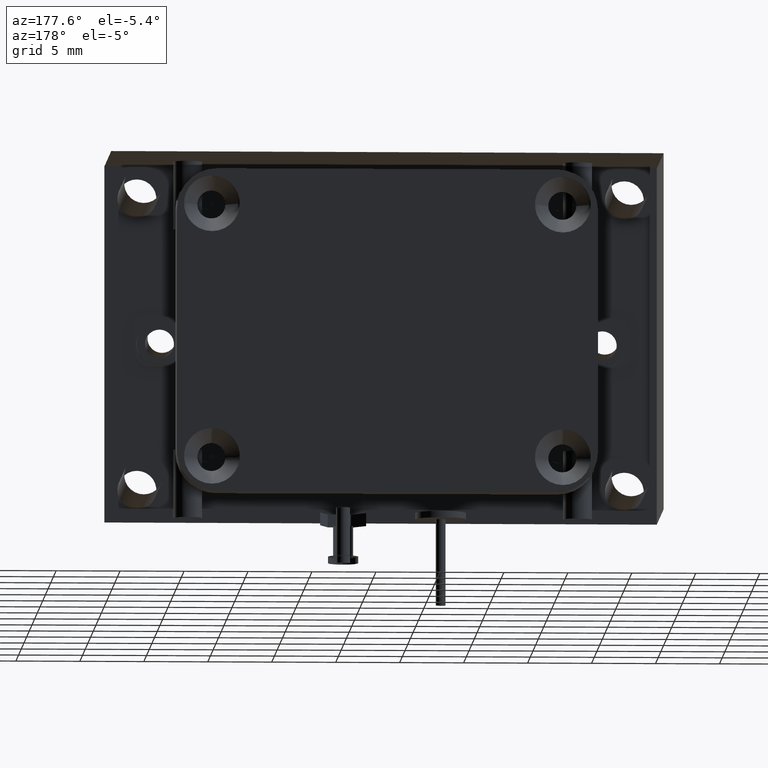
[diagram: clean part render]
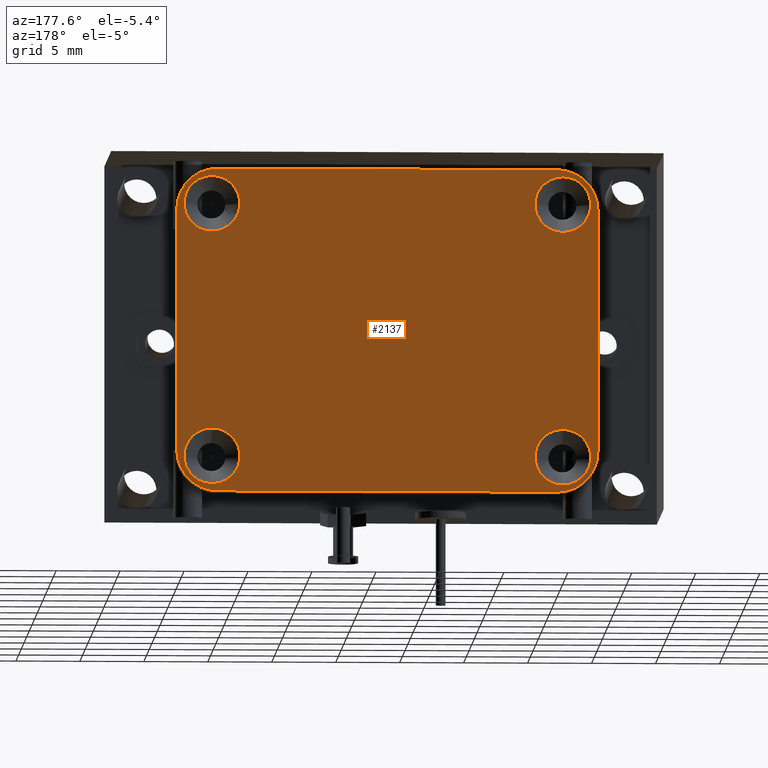
[diagram: same view with one face highlighted and labeled with its STEP entity id]
A machine part, auxiliary view. The second image highlights one B-rep face of the part: STEP entity #2137.
In plain terms, the highlighted planar face has unit normal (0, 1, 0).
Its self-contained STEP definition (entity closure, byte-faithful):
#124 = CARTESIAN_POINT ( 'NONE',  ( 0.5586823744848009600, 2.058571440405353200, 0.8595758433327451700 ) ) ;
#165 = DIRECTION ( 'NONE',  ( 0.0000000000000000000, -1.000000000000000000, -0.0000000000000000000 ) ) ;
#316 = DIRECTION ( 'NONE',  ( -1.000000000000000000, -0.0000000000000000000, 0.0000000000000000000 ) ) ;
#346 = EDGE_LOOP ( 'NONE', ( #910, #6352 ) ) ;
#369 = FACE_BOUND ( 'NONE', #3242, .T. ) ;
#642 = CARTESIAN_POINT ( 'NONE',  ( 0.4506823744848007500, 2.058571440404362000, 0.01057584333392263900 ) ) ;
#647 = ORIENTED_EDGE ( 'NONE', *, *, #4087, .T. ) ;
#778 = CARTESIAN_POINT ( 'NONE',  ( 0.4506823744848007500, 2.058571440404362000, 0.09657584333274524300 ) ) ;
#803 = CARTESIAN_POINT ( 'NONE',  ( -0.6123176255151990800, 2.058571440405353200, 0.1135758433327454400 ) ) ;
#831 = AXIS2_PLACEMENT_3D ( 'NONE', #6128, #5523, #7955 ) ;
#843 = VERTEX_POINT ( 'NONE', #2272 ) ;
#910 = ORIENTED_EDGE ( 'NONE', *, *, #5437, .T. ) ;
#945 = VECTOR ( 'NONE', #1468, 39.37007874015748100 ) ;
#983 = LINE ( 'NONE', #2243, #6797 ) ;
#1078 = AXIS2_PLACEMENT_3D ( 'NONE', #1903, #1849, #6861 ) ;
#1133 = LINE ( 'NONE', #4567, #945 ) ;
#1245 = FACE_BOUND ( 'NONE', #3756, .T. ) ;
#1259 = DIRECTION ( 'NONE',  ( 0.0000000000000000000, -1.000000000000000000, -0.0000000000000000000 ) ) ;
#1345 = CARTESIAN_POINT ( 'NONE',  ( -0.7373176255151990800, 2.058571440405353200, 0.8595758433327453900 ) ) ;
#1369 = VERTEX_POINT ( 'NONE', #5476 ) ;
#1409 = DIRECTION ( 'NONE',  ( 0.0000000000000000000, 0.0000000000000000000, 1.000000000000000000 ) ) ;
#1442 = VERTEX_POINT ( 'NONE', #7837 ) ;
#1446 = VECTOR ( 'NONE', #3467, 39.37007874015748100 ) ;
#1468 = DIRECTION ( 'NONE',  ( 0.0000000000000000000, -0.0000000000000000000, 1.000000000000000000 ) ) ;
#1487 = VERTEX_POINT ( 'NONE', #5566 ) ;
#1518 = CARTESIAN_POINT ( 'NONE',  ( 0.4506823744848007500, 2.058571440404362000, 0.8765758433327453000 ) ) ;
#1544 = CIRCLE ( 'NONE', #7849, 0.1250000000000000000 ) ;
#1554 = AXIS2_PLACEMENT_3D ( 'NONE', #6386, #2049, #6994 ) ;
#1570 = EDGE_CURVE ( 'NONE', #1442, #7601, #4601, .T. ) ;
#1597 = DIRECTION ( 'NONE',  ( 0.0000000000000000000, -0.0000000000000000000, 1.000000000000000000 ) ) ;
#1604 = ORIENTED_EDGE ( 'NONE', *, *, #2001, .T. ) ;
#1636 = FACE_OUTER_BOUND ( 'NONE', #2367, .T. ) ;
#1637 = EDGE_CURVE ( 'NONE', #4981, #1369, #7301, .T. ) ;
#1849 = DIRECTION ( 'NONE',  ( -0.0000000000000000000, 1.000000000000000000, -0.0000000000000000000 ) ) ;
#1854 = EDGE_CURVE ( 'NONE', #6517, #7558, #1544, .T. ) ;
#1874 = ORIENTED_EDGE ( 'NONE', *, *, #4703, .T. ) ;
#1903 = CARTESIAN_POINT ( 'NONE',  ( -0.6123176255151990800, 2.058571440405353200, 0.8595758433327453900 ) ) ;
#1917 = VERTEX_POINT ( 'NONE', #4752 ) ;
#2001 = EDGE_CURVE ( 'NONE', #3926, #4041, #6283, .T. ) ;
#2015 = DIRECTION ( 'NONE',  ( 0.0000000000000000000, -1.000000000000000000, -0.0000000000000000000 ) ) ;
#2049 = DIRECTION ( 'NONE',  ( 0.0000000000000000000, -1.000000000000000000, -0.0000000000000000000 ) ) ;
#2061 = AXIS2_PLACEMENT_3D ( 'NONE', #803, #5747, #5149 ) ;
#2082 = AXIS2_PLACEMENT_3D ( 'NONE', #6862, #2015, #1409 ) ;
#2137 = ADVANCED_FACE ( 'NONE', ( #1636, #1245, #2705, #7703, #369 ), #7708, .T. ) ;
#2154 = CARTESIAN_POINT ( 'NONE',  ( -0.6123176255151990800, 2.058571440405353200, 0.9845758433327452800 ) ) ;
#2228 = EDGE_LOOP ( 'NONE', ( #647, #7231 ) ) ;
#2243 = CARTESIAN_POINT ( 'NONE',  ( -0.08931762551519932500, 2.058571440405353200, -0.01142415666725473400 ) ) ;
#2272 = CARTESIAN_POINT ( 'NONE',  ( -0.6123176255151990800, 2.058571440405353200, -0.01142415666725464900 ) ) ;
#2286 = ORIENTED_EDGE ( 'NONE', *, *, #6720, .T. ) ;
#2304 = VERTEX_POINT ( 'NONE', #642 ) ;
#2350 = DIRECTION ( 'NONE',  ( 0.0000000000000000000, -1.000000000000000000, -0.0000000000000000000 ) ) ;
#2367 = EDGE_LOOP ( 'NONE', ( #4901, #7953, #5450, #6235, #3343, #2286, #5415, #6734 ) ) ;
#2394 = CARTESIAN_POINT ( 'NONE',  ( 0.5586823744848009600, 2.058571440405353200, 0.4865758433327452300 ) ) ;
#2630 = CARTESIAN_POINT ( 'NONE',  ( -0.6293176255151993200, 2.058571440406599800, 0.09657584333274524300 ) ) ;
#2705 = FACE_BOUND ( 'NONE', #346, .T. ) ;
#2782 = CARTESIAN_POINT ( 'NONE',  ( 0.5586823744848009600, 2.058571440405353200, 0.1135758433327453000 ) ) ;
#2820 = CARTESIAN_POINT ( 'NONE',  ( -0.08931762551519932500, 2.058571440405353200, 0.9845758433327452800 ) ) ;
#3002 = LINE ( 'NONE', #2394, #7700 ) ;
#3005 = DIRECTION ( 'NONE',  ( 0.0000000000000000000, 0.0000000000000000000, 1.000000000000000000 ) ) ;
#3122 = CIRCLE ( 'NONE', #3780, 0.08600000000083565800 ) ;
#3127 = ORIENTED_EDGE ( 'NONE', *, *, #6148, .T. ) ;
#3242 = EDGE_LOOP ( 'NONE', ( #1604, #1874 ) ) ;
#3300 = DIRECTION ( 'NONE',  ( 0.0000000000000000000, -1.000000000000000000, -0.0000000000000000000 ) ) ;
#3343 = ORIENTED_EDGE ( 'NONE', *, *, #5654, .T. ) ;
#3433 = AXIS2_PLACEMENT_3D ( 'NONE', #2630, #165, #7630 ) ;
#3447 = AXIS2_PLACEMENT_3D ( 'NONE', #1518, #6588, #5934 ) ;
#3467 = DIRECTION ( 'NONE',  ( 1.000000000000000000, 0.0000000000000000000, -0.0000000000000000000 ) ) ;
#3567 = CIRCLE ( 'NONE', #1554, 0.08600000000083565800 ) ;
#3756 = EDGE_LOOP ( 'NONE', ( #3127, #4678 ) ) ;
#3780 = AXIS2_PLACEMENT_3D ( 'NONE', #5530, #4169, #7291 ) ;
#3784 = CIRCLE ( 'NONE', #2061, 0.1250000000000000000 ) ;
#3787 = DIRECTION ( 'NONE',  ( 0.0000000000000000000, 0.0000000000000000000, 1.000000000000000000 ) ) ;
#3926 = VERTEX_POINT ( 'NONE', #6332 ) ;
#3997 = VERTEX_POINT ( 'NONE', #7753 ) ;
#4041 = VERTEX_POINT ( 'NONE', #5259 ) ;
#4087 = EDGE_CURVE ( 'NONE', #1369, #4981, #4259, .T. ) ;
#4123 = AXIS2_PLACEMENT_3D ( 'NONE', #7261, #2350, #3005 ) ;
#4169 = DIRECTION ( 'NONE',  ( 0.0000000000000000000, -1.000000000000000000, -0.0000000000000000000 ) ) ;
#4259 = CIRCLE ( 'NONE', #3447, 0.08600000000278100500 ) ;
#4297 = CARTESIAN_POINT ( 'NONE',  ( 0.4506823744848007500, 2.058571440404362000, 0.1825758433315678700 ) ) ;
#4398 = VERTEX_POINT ( 'NONE', #1345 ) ;
#4419 = CARTESIAN_POINT ( 'NONE',  ( 0.4506823744848007500, 2.058571440404362000, 0.7905758433299642200 ) ) ;
#4505 = VERTEX_POINT ( 'NONE', #2154 ) ;
#4558 = DIRECTION ( 'NONE',  ( 0.0000000000000000000, 0.0000000000000000000, 1.000000000000000000 ) ) ;
#4567 = CARTESIAN_POINT ( 'NONE',  ( -0.7373176255151991900, 2.058571440405353200, 0.4865758433327452300 ) ) ;
#4601 = CIRCLE ( 'NONE', #831, 0.1250000000000000300 ) ;
#4678 = ORIENTED_EDGE ( 'NONE', *, *, #7624, .T. ) ;
#4703 = EDGE_CURVE ( 'NONE', #4041, #3926, #5512, .T. ) ;
#4752 = CARTESIAN_POINT ( 'NONE',  ( -0.6293176255151993200, 2.058571440406599800, 0.7905758433319095600 ) ) ;
#4901 = ORIENTED_EDGE ( 'NONE', *, *, #7275, .T. ) ;
#4981 = VERTEX_POINT ( 'NONE', #4419 ) ;
#5079 = CARTESIAN_POINT ( 'NONE',  ( 0.4336823744848009600, 2.058571440405353200, -0.01142415666725471600 ) ) ;
#5149 = DIRECTION ( 'NONE',  ( 0.0000000000000000000, 0.0000000000000000000, -1.000000000000000000 ) ) ;
#5241 = LINE ( 'NONE', #2820, #1446 ) ;
#5259 = CARTESIAN_POINT ( 'NONE',  ( -0.6293176255151993200, 2.058571440406599800, 0.01057584333197723900 ) ) ;
#5326 = DIRECTION ( 'NONE',  ( 0.0000000000000000000, 0.0000000000000000000, -1.000000000000000000 ) ) ;
#5415 = ORIENTED_EDGE ( 'NONE', *, *, #7156, .T. ) ;
#5437 = EDGE_CURVE ( 'NONE', #7496, #2304, #5595, .T. ) ;
#5450 = ORIENTED_EDGE ( 'NONE', *, *, #6006, .T. ) ;
#5476 = CARTESIAN_POINT ( 'NONE',  ( 0.4506823744848007500, 2.058571440404362000, 0.9625758433355262600 ) ) ;
#5512 = CIRCLE ( 'NONE', #4123, 0.08600000000076800400 ) ;
#5523 = DIRECTION ( 'NONE',  ( -0.0000000000000000000, 1.000000000000000000, -0.0000000000000000000 ) ) ;
#5530 = CARTESIAN_POINT ( 'NONE',  ( -0.6293176255151993200, 2.058571440406599800, 0.8765758433327453000 ) ) ;
#5566 = CARTESIAN_POINT ( 'NONE',  ( -0.6293176255151993200, 2.058571440406599800, 0.9625758433335809300 ) ) ;
#5595 = CIRCLE ( 'NONE', #5742, 0.08599999999882262900 ) ;
#5635 = CIRCLE ( 'NONE', #1078, 0.1250000000000000300 ) ;
#5654 = EDGE_CURVE ( 'NONE', #3997, #4398, #1133, .T. ) ;
#5742 = AXIS2_PLACEMENT_3D ( 'NONE', #6869, #1259, #3787 ) ;
#5747 = DIRECTION ( 'NONE',  ( -0.0000000000000000000, 1.000000000000000000, -0.0000000000000000000 ) ) ;
#5855 = DIRECTION ( 'NONE',  ( 0.0000000000000000000, 1.000000000000000000, 0.0000000000000000000 ) ) ;
#5913 = CARTESIAN_POINT ( 'NONE',  ( -0.08931762551519932500, 2.058571440405353200, 0.4865758433327452300 ) ) ;
#5934 = DIRECTION ( 'NONE',  ( 0.0000000000000000000, 0.0000000000000000000, 1.000000000000000000 ) ) ;
#5936 = DIRECTION ( 'NONE',  ( -0.0000000000000000000, 1.000000000000000000, -0.0000000000000000000 ) ) ;
#5986 = DIRECTION ( 'NONE',  ( -0.0000000000000000000, 0.0000000000000000000, -1.000000000000000000 ) ) ;
#6006 = EDGE_CURVE ( 'NONE', #7558, #843, #983, .T. ) ;
#6128 = CARTESIAN_POINT ( 'NONE',  ( 0.4336823744848009600, 2.058571440405353200, 0.8595758433327451700 ) ) ;
#6148 = EDGE_CURVE ( 'NONE', #1487, #1917, #3122, .T. ) ;
#6228 = AXIS2_PLACEMENT_3D ( 'NONE', #5913, #5855, #1597 ) ;
#6235 = ORIENTED_EDGE ( 'NONE', *, *, #7088, .T. ) ;
#6283 = CIRCLE ( 'NONE', #3433, 0.08600000000076800400 ) ;
#6332 = CARTESIAN_POINT ( 'NONE',  ( -0.6293176255151993200, 2.058571440406599800, 0.1825758433335132600 ) ) ;
#6352 = ORIENTED_EDGE ( 'NONE', *, *, #6972, .T. ) ;
#6386 = CARTESIAN_POINT ( 'NONE',  ( -0.6293176255151993200, 2.058571440406599800, 0.8765758433327453000 ) ) ;
#6483 = AXIS2_PLACEMENT_3D ( 'NONE', #778, #3300, #4558 ) ;
#6517 = VERTEX_POINT ( 'NONE', #2782 ) ;
#6588 = DIRECTION ( 'NONE',  ( 0.0000000000000000000, -1.000000000000000000, -0.0000000000000000000 ) ) ;
#6720 = EDGE_CURVE ( 'NONE', #4398, #4505, #5635, .T. ) ;
#6734 = ORIENTED_EDGE ( 'NONE', *, *, #1570, .T. ) ;
#6797 = VECTOR ( 'NONE', #316, 39.37007874015748100 ) ;
#6861 = DIRECTION ( 'NONE',  ( 0.0000000000000000000, 0.0000000000000000000, -1.000000000000000000 ) ) ;
#6862 = CARTESIAN_POINT ( 'NONE',  ( 0.4506823744848007500, 2.058571440404362000, 0.8765758433327453000 ) ) ;
#6869 = CARTESIAN_POINT ( 'NONE',  ( 0.4506823744848007500, 2.058571440404362000, 0.09657584333274524300 ) ) ;
#6972 = EDGE_CURVE ( 'NONE', #2304, #7496, #7816, .T. ) ;
#6994 = DIRECTION ( 'NONE',  ( 0.0000000000000000000, 0.0000000000000000000, 1.000000000000000000 ) ) ;
#7088 = EDGE_CURVE ( 'NONE', #843, #3997, #3784, .T. ) ;
#7116 = CARTESIAN_POINT ( 'NONE',  ( 0.4336823744848009600, 2.058571440405353200, 0.1135758433327453000 ) ) ;
#7156 = EDGE_CURVE ( 'NONE', #4505, #1442, #5241, .T. ) ;
#7231 = ORIENTED_EDGE ( 'NONE', *, *, #1637, .T. ) ;
#7261 = CARTESIAN_POINT ( 'NONE',  ( -0.6293176255151993200, 2.058571440406599800, 0.09657584333274524300 ) ) ;
#7275 = EDGE_CURVE ( 'NONE', #7601, #6517, #3002, .T. ) ;
#7291 = DIRECTION ( 'NONE',  ( 0.0000000000000000000, 0.0000000000000000000, 1.000000000000000000 ) ) ;
#7301 = CIRCLE ( 'NONE', #2082, 0.08600000000278100500 ) ;
#7496 = VERTEX_POINT ( 'NONE', #4297 ) ;
#7558 = VERTEX_POINT ( 'NONE', #5079 ) ;
#7601 = VERTEX_POINT ( 'NONE', #124 ) ;
#7624 = EDGE_CURVE ( 'NONE', #1917, #1487, #3567, .T. ) ;
#7630 = DIRECTION ( 'NONE',  ( 0.0000000000000000000, 0.0000000000000000000, 1.000000000000000000 ) ) ;
#7700 = VECTOR ( 'NONE', #5986, 39.37007874015748100 ) ;
#7703 = FACE_BOUND ( 'NONE', #2228, .T. ) ;
#7708 = PLANE ( 'NONE',  #6228 ) ;
#7753 = CARTESIAN_POINT ( 'NONE',  ( -0.7373176255151991900, 2.058571440405353200, 0.1135758433327454700 ) ) ;
#7816 = CIRCLE ( 'NONE', #6483, 0.08599999999882262900 ) ;
#7837 = CARTESIAN_POINT ( 'NONE',  ( 0.4336823744848009600, 2.058571440405353200, 0.9845758433327452800 ) ) ;
#7849 = AXIS2_PLACEMENT_3D ( 'NONE', #7116, #5936, #5326 ) ;
#7953 = ORIENTED_EDGE ( 'NONE', *, *, #1854, .T. ) ;
#7955 = DIRECTION ( 'NONE',  ( 0.0000000000000000000, 0.0000000000000000000, -1.000000000000000000 ) ) ;